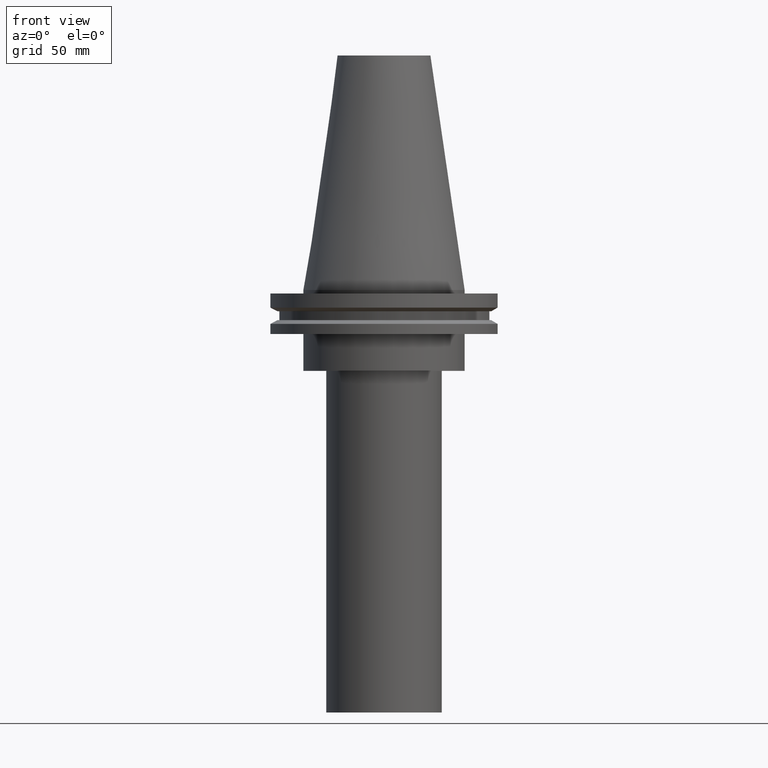
[diagram: clean part render]
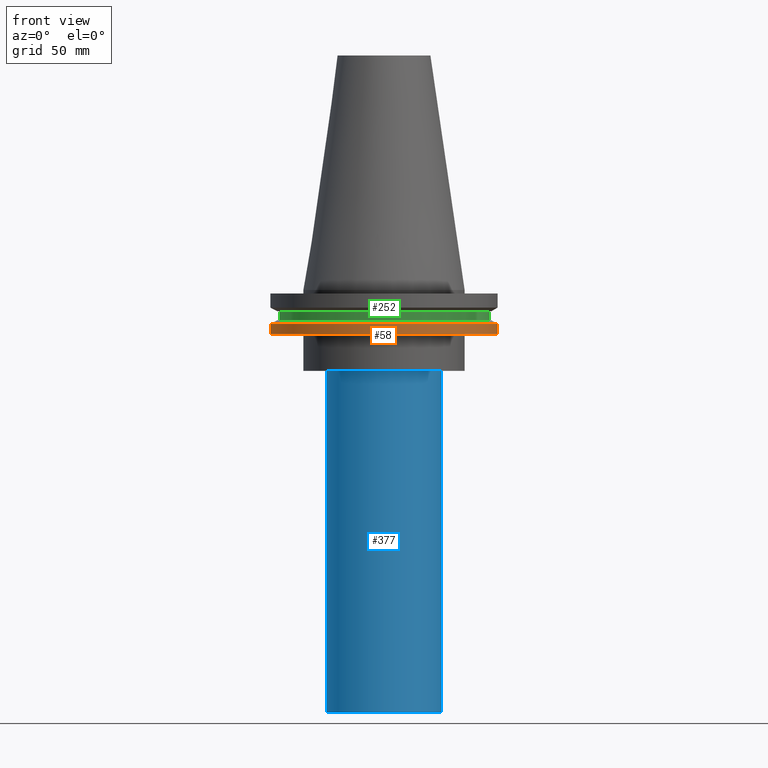
[diagram: same view with three faces highlighted in distinct colors, each labeled with its STEP entity id]
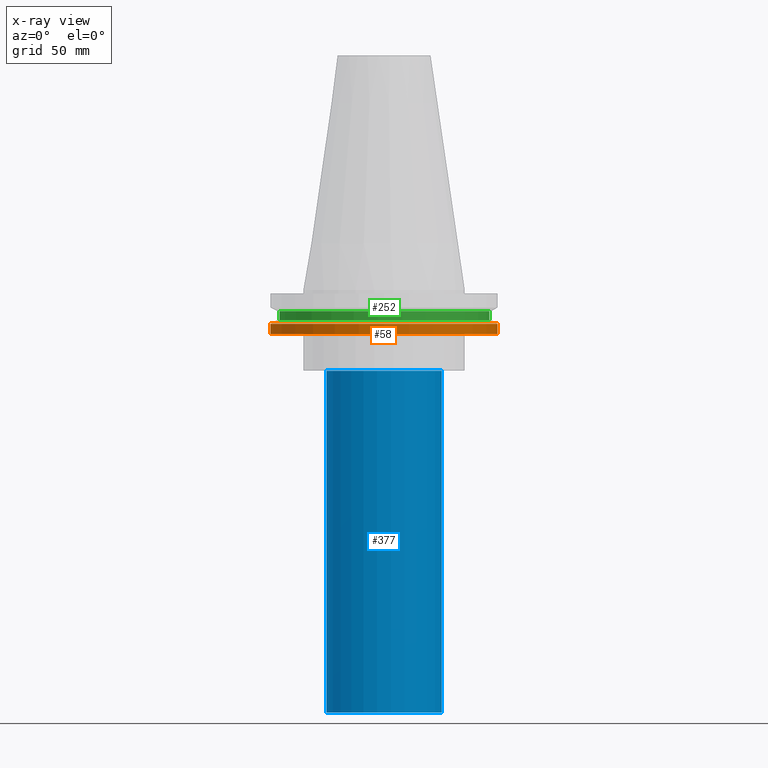
[diagram: x-ray of the same camera — body ghosted, the three highlighted faces saturated]
A machine part, front view with three faces highlighted in distinct colors.
The next image is the same camera in x-ray (body ghosted, the three faces saturated) — at least one of them is partly hidden behind the body in this view.
Their STEP definitions:

[orange] entity #58 — the highlighted cylindrical surface (bore or boss wall) has radius 49.215 mm, axis along (-0, -0, 1).
#12 = ORIENTED_EDGE ( 'NONE', *, *, #157, .T. ) ;
#37 = CIRCLE ( 'NONE', #140, 49.21499999999998920 ) ;
#42 = VERTEX_POINT ( 'NONE', #236 ) ;
#43 = CARTESIAN_POINT ( 'NONE',  ( 49.21499999999998920, 0.000000000000000000, -14.65761014474876944 ) ) ;
#45 = VERTEX_POINT ( 'NONE', #43 ) ;
#56 = CARTESIAN_POINT ( 'NONE',  ( 0.000000000000000000, 0.000000000000000000, 101.5999999999999943 ) ) ;
#58 = ADVANCED_FACE ( 'NONE', ( #117, #331 ), #277, .T. ) ;
#83 = ORIENTED_EDGE ( 'NONE', *, *, #194, .F. ) ;
#86 = DIRECTION ( 'NONE',  ( -0.000000000000000000, -0.000000000000000000, 1.000000000000000000 ) ) ;
#94 = AXIS2_PLACEMENT_3D ( 'NONE', #245, #86, #368 ) ;
#114 = EDGE_LOOP ( 'NONE', ( #12 ) ) ;
#117 = FACE_OUTER_BOUND ( 'NONE', #133, .T. ) ;
#133 = EDGE_LOOP ( 'NONE', ( #83 ) ) ;
#140 = AXIS2_PLACEMENT_3D ( 'NONE', #389, #364, #366 ) ;
#157 = EDGE_CURVE ( 'NONE', #42, #42, #37, .T. ) ;
#194 = EDGE_CURVE ( 'NONE', #45, #45, #247, .T. ) ;
#209 = DIRECTION ( 'NONE',  ( 1.000000000000000000, 0.000000000000000000, 0.000000000000000000 ) ) ;
#236 = CARTESIAN_POINT ( 'NONE',  ( 49.21499999999998920, 0.000000000000000000, -19.04999999999999716 ) ) ;
#245 = CARTESIAN_POINT ( 'NONE',  ( 0.000000000000000000, 0.000000000000000000, -14.65761014474876944 ) ) ;
#247 = CIRCLE ( 'NONE', #94, 49.21499999999998920 ) ;
#260 = AXIS2_PLACEMENT_3D ( 'NONE', #56, #304, #209 ) ;
#277 = CYLINDRICAL_SURFACE ( 'NONE', #260, 49.21499999999998920 ) ;
#304 = DIRECTION ( 'NONE',  ( -0.000000000000000000, -0.000000000000000000, 1.000000000000000000 ) ) ;
#331 = FACE_OUTER_BOUND ( 'NONE', #114, .T. ) ;
#364 = DIRECTION ( 'NONE',  ( -0.000000000000000000, -0.000000000000000000, 1.000000000000000000 ) ) ;
#366 = DIRECTION ( 'NONE',  ( 1.000000000000000000, 0.000000000000000000, 0.000000000000000000 ) ) ;
#368 = DIRECTION ( 'NONE',  ( 1.000000000000000000, 0.000000000000000000, 0.000000000000000000 ) ) ;
#389 = CARTESIAN_POINT ( 'NONE',  ( 0.000000000000000000, 0.000000000000000000, -19.04999999999999716 ) ) ;

[blue] entity #377 — the highlighted cylindrical surface (bore or boss wall) has radius 25 mm, axis along (-0, -0, 1).
#1 = FACE_OUTER_BOUND ( 'NONE', #296, .T. ) ;
#3 = DIRECTION ( 'NONE',  ( 1.000000000000000000, 0.000000000000000000, 0.000000000000000000 ) ) ;
#11 = VERTEX_POINT ( 'NONE', #352 ) ;
#13 = CIRCLE ( 'NONE', #355, 25.00000000000000000 ) ;
#19 = AXIS2_PLACEMENT_3D ( 'NONE', #393, #337, #23 ) ;
#21 = DIRECTION ( 'NONE',  ( -0.000000000000000000, -0.000000000000000000, 1.000000000000000000 ) ) ;
#23 = DIRECTION ( 'NONE',  ( 1.000000000000000000, 0.000000000000000000, 0.000000000000000000 ) ) ;
#61 = CARTESIAN_POINT ( 'NONE',  ( 0.000000000000000000, 0.000000000000000000, -35.00000000000000000 ) ) ;
#89 = EDGE_CURVE ( 'NONE', #11, #11, #13, .T. ) ;
#91 = DIRECTION ( 'NONE',  ( 1.000000000000000000, 0.000000000000000000, 0.000000000000000000 ) ) ;
#110 = CARTESIAN_POINT ( 'NONE',  ( 25.00000000000000000, 0.000000000000000000, -183.0000000000000000 ) ) ;
#164 = EDGE_CURVE ( 'NONE', #380, #380, #365, .T. ) ;
#212 = AXIS2_PLACEMENT_3D ( 'NONE', #314, #248, #3 ) ;
#224 = CYLINDRICAL_SURFACE ( 'NONE', #212, 25.00000000000000000 ) ;
#248 = DIRECTION ( 'NONE',  ( -0.000000000000000000, -0.000000000000000000, 1.000000000000000000 ) ) ;
#282 = FACE_OUTER_BOUND ( 'NONE', #327, .T. ) ;
#295 = ORIENTED_EDGE ( 'NONE', *, *, #164, .T. ) ;
#296 = EDGE_LOOP ( 'NONE', ( #295 ) ) ;
#314 = CARTESIAN_POINT ( 'NONE',  ( 0.000000000000000000, 0.000000000000000000, 0.000000000000000000 ) ) ;
#327 = EDGE_LOOP ( 'NONE', ( #381 ) ) ;
#337 = DIRECTION ( 'NONE',  ( -0.000000000000000000, -0.000000000000000000, 1.000000000000000000 ) ) ;
#352 = CARTESIAN_POINT ( 'NONE',  ( 25.00000000000000000, 0.000000000000000000, -35.00000000000000000 ) ) ;
#355 = AXIS2_PLACEMENT_3D ( 'NONE', #61, #21, #91 ) ;
#365 = CIRCLE ( 'NONE', #19, 25.00000000000000000 ) ;
#377 = ADVANCED_FACE ( 'NONE', ( #282, #1 ), #224, .T. ) ;
#380 = VERTEX_POINT ( 'NONE', #110 ) ;
#381 = ORIENTED_EDGE ( 'NONE', *, *, #89, .F. ) ;
#393 = CARTESIAN_POINT ( 'NONE',  ( 0.000000000000000000, 0.000000000000000000, -183.0000000000000000 ) ) ;

[green] entity #252 — the highlighted cylindrical surface (bore or boss wall) has radius 45.645 mm, axis along (-0, -0, 1).
#46 = DIRECTION ( 'NONE',  ( -0.000000000000000000, -0.000000000000000000, 1.000000000000000000 ) ) ;
#48 = EDGE_CURVE ( 'NONE', #340, #340, #177, .T. ) ;
#81 = AXIS2_PLACEMENT_3D ( 'NONE', #240, #369, #95 ) ;
#95 = DIRECTION ( 'NONE',  ( 1.000000000000000000, 0.000000000000000000, 0.000000000000000000 ) ) ;
#102 = DIRECTION ( 'NONE',  ( -0.000000000000000000, -0.000000000000000000, 1.000000000000000000 ) ) ;
#103 = CARTESIAN_POINT ( 'NONE',  ( 0.000000000000000000, 0.000000000000000000, -13.05499999999999794 ) ) ;
#115 = AXIS2_PLACEMENT_3D ( 'NONE', #329, #46, #270 ) ;
#177 = CIRCLE ( 'NONE', #115, 45.64500000000000313 ) ;
#222 = EDGE_LOOP ( 'NONE', ( #262 ) ) ;
#228 = EDGE_LOOP ( 'NONE', ( #232 ) ) ;
#232 = ORIENTED_EDGE ( 'NONE', *, *, #48, .F. ) ;
#233 = CARTESIAN_POINT ( 'NONE',  ( 45.64500000000000313, 0.000000000000000000, -13.05499999999999794 ) ) ;
#240 = CARTESIAN_POINT ( 'NONE',  ( 0.000000000000000000, 0.000000000000000000, 101.5999999999999943 ) ) ;
#252 = ADVANCED_FACE ( 'NONE', ( #307, #278 ), #339, .T. ) ;
#262 = ORIENTED_EDGE ( 'NONE', *, *, #344, .T. ) ;
#269 = VERTEX_POINT ( 'NONE', #233 ) ;
#270 = DIRECTION ( 'NONE',  ( 1.000000000000000000, 0.000000000000000000, 0.000000000000000000 ) ) ;
#278 = FACE_OUTER_BOUND ( 'NONE', #222, .T. ) ;
#279 = CIRCLE ( 'NONE', #310, 45.64500000000000313 ) ;
#307 = FACE_OUTER_BOUND ( 'NONE', #228, .T. ) ;
#310 = AXIS2_PLACEMENT_3D ( 'NONE', #103, #102, #311 ) ;
#311 = DIRECTION ( 'NONE',  ( 1.000000000000000000, 0.000000000000000000, 0.000000000000000000 ) ) ;
#329 = CARTESIAN_POINT ( 'NONE',  ( 0.000000000000000000, 0.000000000000000000, -9.204999999999991189 ) ) ;
#339 = CYLINDRICAL_SURFACE ( 'NONE', #81, 45.64500000000000313 ) ;
#340 = VERTEX_POINT ( 'NONE', #343 ) ;
#343 = CARTESIAN_POINT ( 'NONE',  ( 45.64500000000000313, 0.000000000000000000, -9.204999999999991189 ) ) ;
#344 = EDGE_CURVE ( 'NONE', #269, #269, #279, .T. ) ;
#369 = DIRECTION ( 'NONE',  ( -0.000000000000000000, -0.000000000000000000, 1.000000000000000000 ) ) ;